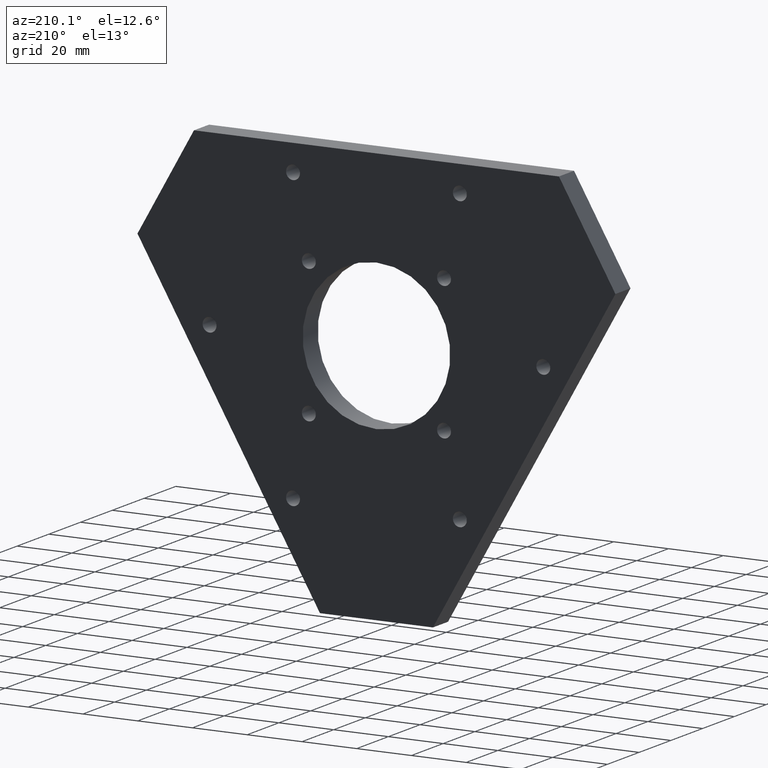
[diagram: clean part render]
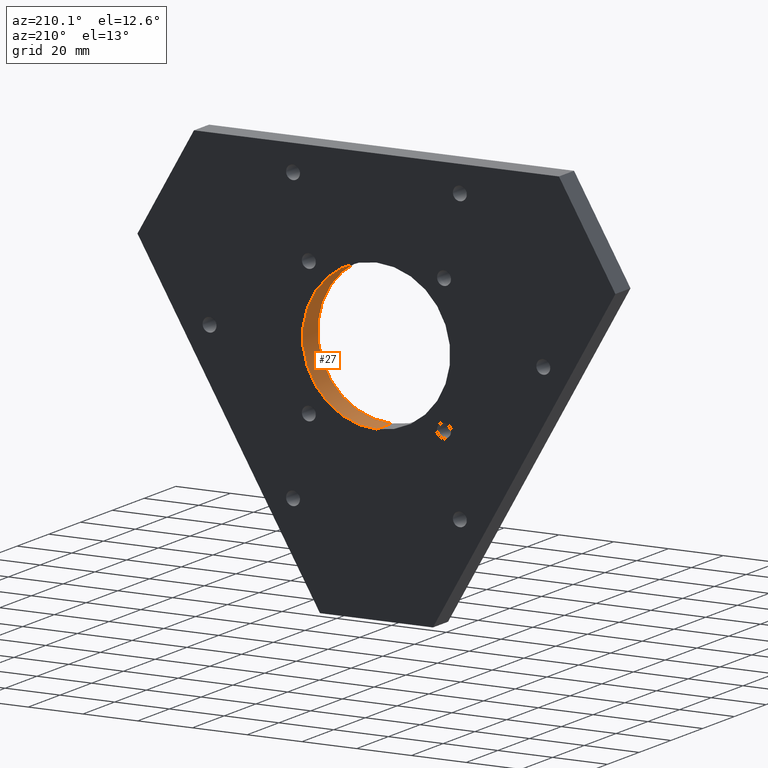
[diagram: same view with one face highlighted and labeled with its STEP entity id]
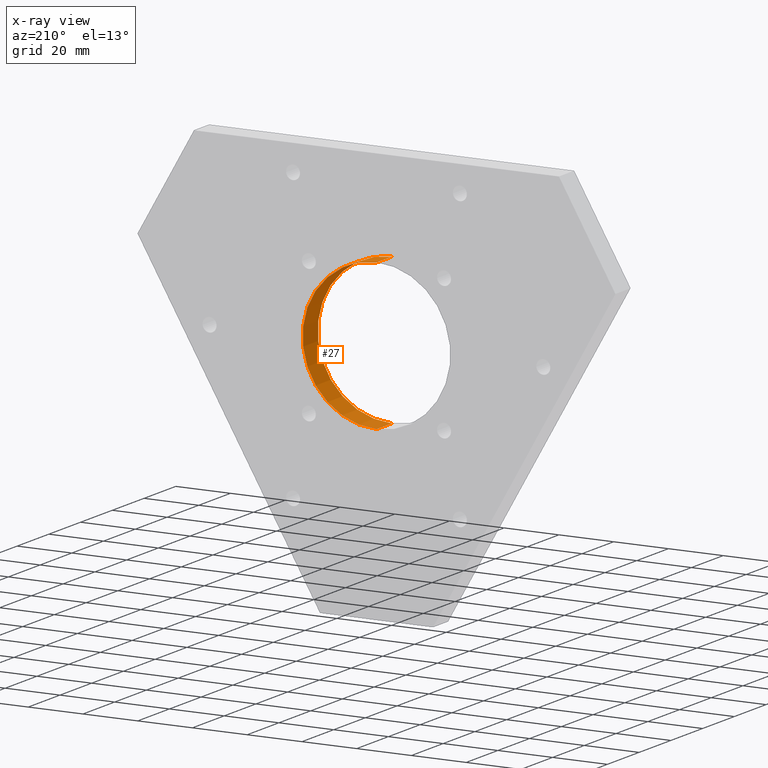
[diagram: x-ray of the same camera — body ghosted, the highlighted face saturated]
A machine part, auxiliary view. The second image highlights one B-rep face of the part: STEP entity #27.
The next image is the same camera in x-ray: the body ghosted, the highlighted face saturated — about 0% of this face is hidden behind the body in this view.
In plain terms, the highlighted cylindrical surface (partial cylindrical patch) has radius 26.9875 mm, axis along (-0, -1, -0).
Its self-contained STEP definition (entity closure, byte-faithful):
#27 = ADVANCED_FACE ( 'NONE', ( #895 ), #894, .F. ) ;
#93 = VERTEX_POINT ( 'NONE', #155 ) ;
#94 = VERTEX_POINT ( 'NONE', #154 ) ;
#98 = VERTEX_POINT ( 'NONE', #153 ) ;
#100 = VERTEX_POINT ( 'NONE', #151 ) ;
#151 = CARTESIAN_POINT ( 'NONE',  ( 0.0000000000000000000, 0.0000000000000000000, -1.062500000000000000 ) ) ;
#153 = CARTESIAN_POINT ( 'NONE',  ( 1.301187224094062400E-016, 0.0000000000000000000, 1.062500000000000000 ) ) ;
#154 = CARTESIAN_POINT ( 'NONE',  ( 1.301187224094062400E-016, 0.3750000000000000600, 1.062500000000000000 ) ) ;
#155 = CARTESIAN_POINT ( 'NONE',  ( 0.0000000000000000000, 0.3750000000000000600, -1.062500000000000000 ) ) ;
#216 = DIRECTION ( 'NONE',  ( 0.0000000000000000000, 0.0000000000000000000, -1.000000000000000000 ) ) ;
#217 = DIRECTION ( 'NONE',  ( -0.0000000000000000000, -1.000000000000000000, -0.0000000000000000000 ) ) ;
#218 = CARTESIAN_POINT ( 'NONE',  ( 0.0000000000000000000, 0.3750000000000000600, 0.0000000000000000000 ) ) ;
#288 = DIRECTION ( 'NONE',  ( 0.0000000000000000000, 0.0000000000000000000, 1.000000000000000000 ) ) ;
#289 = DIRECTION ( 'NONE',  ( 0.0000000000000000000, 1.000000000000000000, 0.0000000000000000000 ) ) ;
#291 = CARTESIAN_POINT ( 'NONE',  ( 0.0000000000000000000, 0.0000000000000000000, 0.0000000000000000000 ) ) ;
#350 = DIRECTION ( 'NONE',  ( 0.0000000000000000000, 0.0000000000000000000, 1.000000000000000000 ) ) ;
#351 = DIRECTION ( 'NONE',  ( 0.0000000000000000000, 1.000000000000000000, 0.0000000000000000000 ) ) ;
#352 = CARTESIAN_POINT ( 'NONE',  ( 0.0000000000000000000, 0.3750000000000000600, 0.0000000000000000000 ) ) ;
#411 = DIRECTION ( 'NONE',  ( -0.0000000000000000000, -1.000000000000000000, -0.0000000000000000000 ) ) ;
#412 = CARTESIAN_POINT ( 'NONE',  ( 0.0000000000000000000, 0.3750000000000000600, -1.062500000000000000 ) ) ;
#414 = DIRECTION ( 'NONE',  ( -0.0000000000000000000, -1.000000000000000000, -0.0000000000000000000 ) ) ;
#415 = CARTESIAN_POINT ( 'NONE',  ( 1.301187224094062400E-016, 0.3750000000000000600, 1.062500000000000000 ) ) ;
#495 = AXIS2_PLACEMENT_3D ( 'NONE', #291, #289, #288 ) ;
#506 = AXIS2_PLACEMENT_3D ( 'NONE', #352, #351, #350 ) ;
#542 = AXIS2_PLACEMENT_3D ( 'NONE', #218, #217, #216 ) ;
#610 = EDGE_CURVE ( 'NONE', #94, #98, #827, .T. ) ;
#611 = EDGE_CURVE ( 'NONE', #93, #100, #824, .T. ) ;
#629 = EDGE_CURVE ( 'NONE', #94, #93, #799, .T. ) ;
#646 = EDGE_CURVE ( 'NONE', #98, #100, #775, .T. ) ;
#663 = ORIENTED_EDGE ( 'NONE', *, *, #610, .F. ) ;
#733 = ORIENTED_EDGE ( 'NONE', *, *, #629, .T. ) ;
#775 = CIRCLE ( 'NONE', #495, 1.062500000000000000 ) ;
#799 = CIRCLE ( 'NONE', #506, 1.062500000000000000 ) ;
#823 = VECTOR ( 'NONE', #411, 39.37007874015748100 ) ;
#824 = LINE ( 'NONE', #412, #823 ) ;
#825 = VECTOR ( 'NONE', #414, 39.37007874015748100 ) ;
#827 = LINE ( 'NONE', #415, #825 ) ;
#894 = CYLINDRICAL_SURFACE ( 'NONE', #542, 1.062500000000000000 ) ;
#895 = FACE_OUTER_BOUND ( 'NONE', #1031, .T. ) ;
#995 = ORIENTED_EDGE ( 'NONE', *, *, #611, .T. ) ;
#996 = ORIENTED_EDGE ( 'NONE', *, *, #646, .F. ) ;
#1031 = EDGE_LOOP ( 'NONE', ( #663, #733, #995, #996 ) ) ;